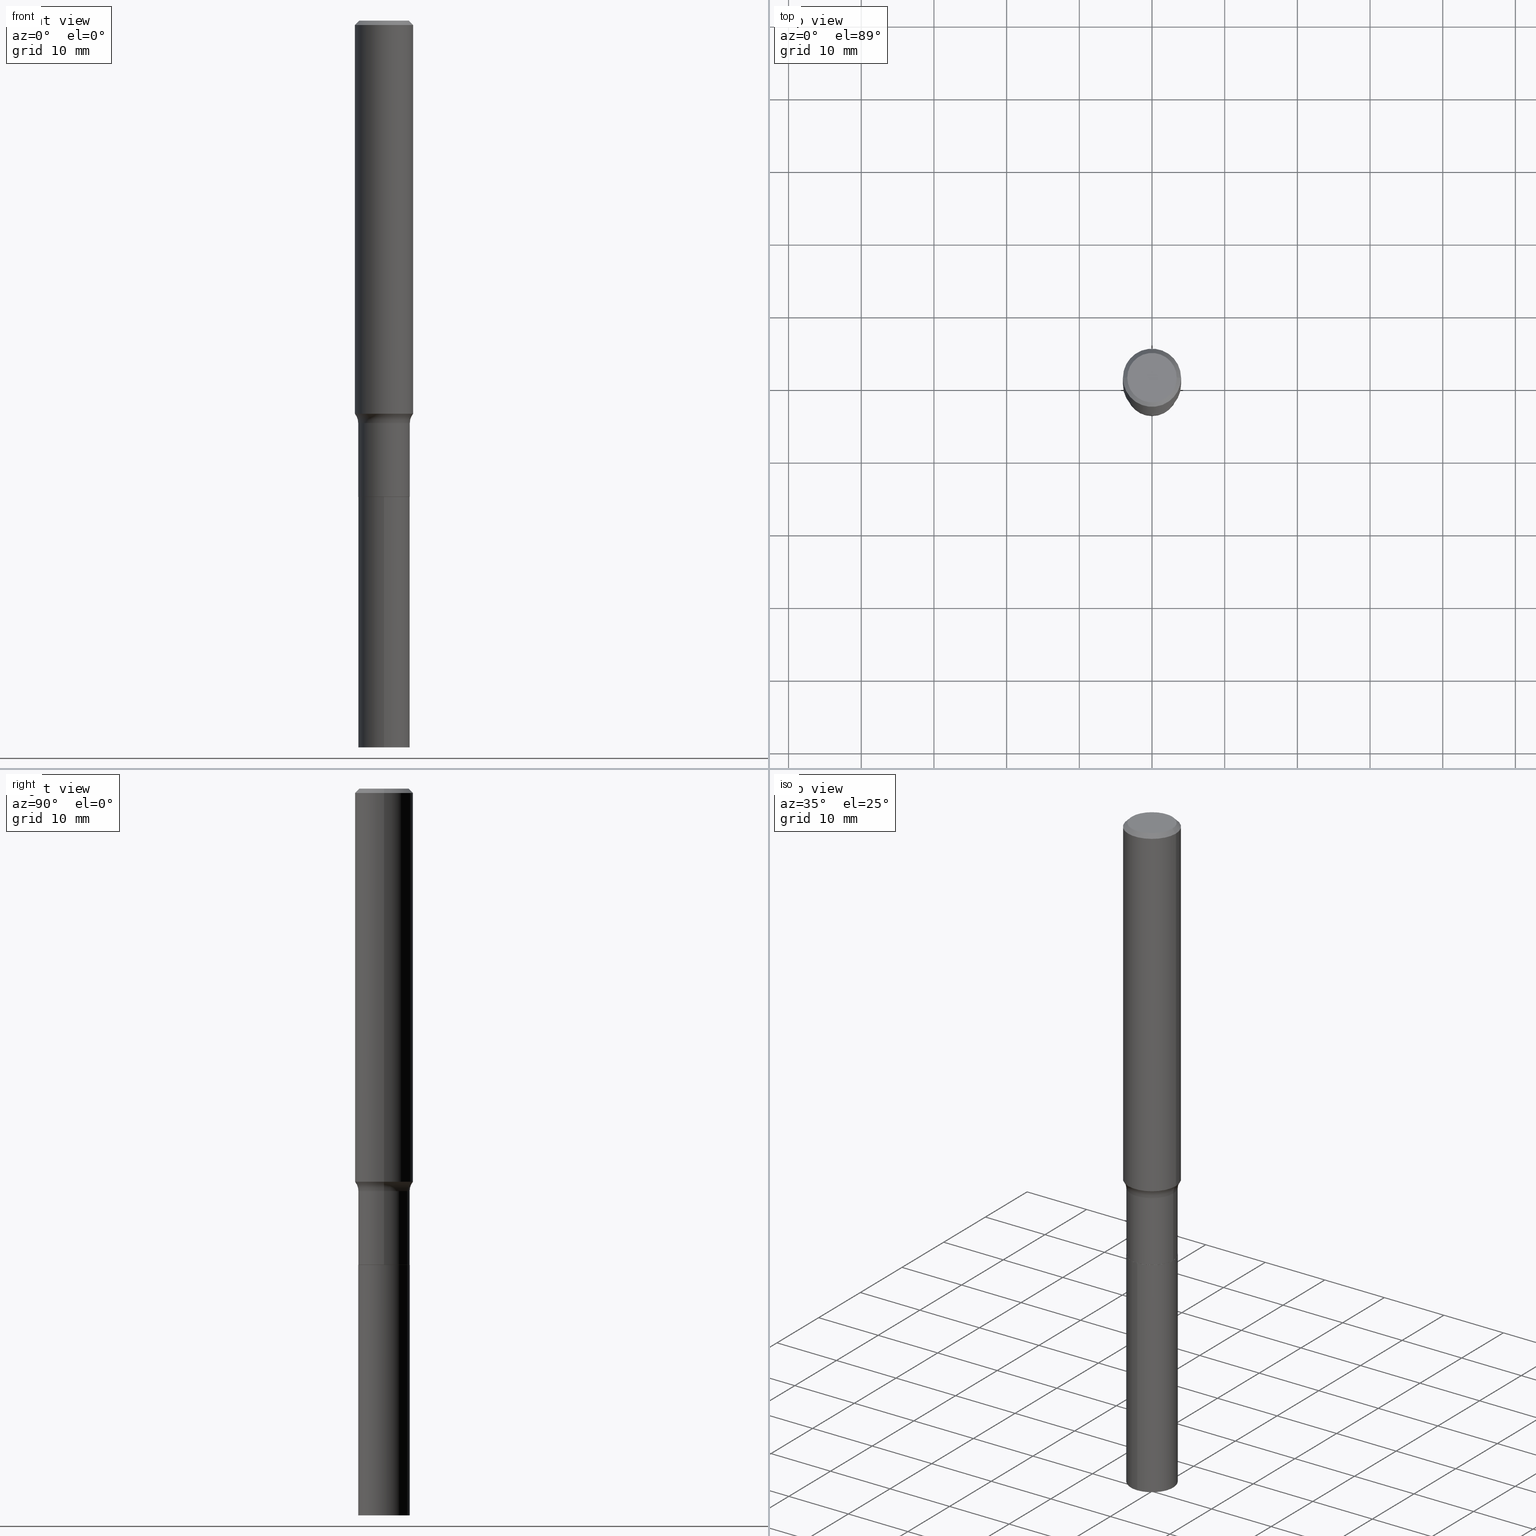
[diagram: canonical four-view strip — front | top / right | iso, engineering-drawing reading convention]
A machine part, canonical four-view strip (front | top / right | iso — engineering-drawing reading convention). The complete STEP part file that produces these views, byte-faithful:
ISO-10303-21;
HEADER;
FILE_DESCRIPTION (( 'STEP AP203' ),
    '1' );
FILE_NAME ('67858.STEP',
    '2024-04-19T16:44:17',
    ( '' ),
    ( '' ),
    'SwSTEP 2.0',
    'SolidWorks 2023',
    '' );
FILE_SCHEMA (( 'CONFIG_CONTROL_DESIGN' ));
ENDSEC;

DATA;
#1 = DIMENSIONAL_EXPONENTS ( 1.000000000000000000, 0.000000000000000000, 0.000000000000000000, 0.000000000000000000, 0.000000000000000000, 0.000000000000000000, 0.000000000000000000 ) ;
#2 = AXIS2_PLACEMENT_3D ( 'NONE', #123, #92, #244 ) ;
#3 = ORIENTED_EDGE ( 'NONE', *, *, #427, .T. ) ;
#4 = CC_DESIGN_PERSON_AND_ORGANIZATION_ASSIGNMENT ( #369, #463, ( #341 ) ) ;
#5 = EDGE_LOOP ( 'NONE', ( #435, #118 ) ) ;
#6 = CARTESIAN_POINT ( 'NONE',  ( 5.208484778518924874E-29, -7.436335872227299474E-15, -2.129851243796487825 ) ) ;
#7 = DIRECTION ( 'NONE',  ( -2.445468806185136597E-29, 3.491481338843145583E-15, 1.000000000000000000 ) ) ;
#8 = PERSON_AND_ORGANIZATION ( #26, #433 ) ;
#9 = DIRECTION ( 'NONE',  ( -6.982962677686265133E-15, -1.000000000000000000, 3.909621457837943227E-15 ) ) ;
#10 = EDGE_CURVE ( 'NONE', #197, #137, #383, .T. ) ;
#11 = DIRECTION ( 'NONE',  ( -0.7071067811865447972, 2.468850131082228267E-15, -0.7071067811865502373 ) ) ;
#12 = DIRECTION ( 'NONE',  ( 1.000000000000000000, -6.982962677686269077E-15, 4.883557194083113462E-29 ) ) ;
#13 = APPROVAL_DATE_TIME ( #57, #246 ) ;
#14 = DIRECTION ( 'NONE',  ( -2.445468806185136597E-29, 3.491481338843145583E-15, 1.000000000000000000 ) ) ;
#15 = CIRCLE ( 'NONE', #206, 0.1392500000000000127 ) ;
#16 = CC_DESIGN_SECURITY_CLASSIFICATION ( #37, ( #365 ) ) ;
#17 = ADVANCED_FACE ( 'NONE', ( #429 ), #366, .T. ) ;
#18 = CARTESIAN_POINT ( 'NONE',  ( 9.929834732248363439E-16, 0.1397499999999909925, -2.579000000000000625 ) ) ;
#19 = DIRECTION ( 'NONE',  ( -2.445468806185136597E-29, 3.491481338843145583E-15, 1.000000000000000000 ) ) ;
#20 = CARTESIAN_POINT ( 'NONE',  ( -0.1397499999999999576, -7.314298076284757115E-15, -2.180100000000000371 ) ) ;
#21 = DIRECTION ( 'NONE',  ( -2.445468806185136597E-29, 3.491481338843145583E-15, 1.000000000000000000 ) ) ;
#22 = VERTEX_POINT ( 'NONE', #277 ) ;
#23 = CARTESIAN_POINT ( 'NONE',  ( -0.1575000000000000844, 1.119104808822158392E-15, -7.747322767151481189E-30 ) ) ;
#24 = AXIS2_PLACEMENT_3D ( 'NONE', #380, #166, #388 ) ;
#25 = CIRCLE ( 'NONE', #94, 0.1397500000000000131 ) ;
#26 = PERSON ( 'UNSPECIFIED', 'UNSPECIFIED', 'UNSPECIFIED', ('UNSPECIFIED'), ('UNSPECIFIED'), ('UNSPECIFIED') ) ;
#27 = ORIENTED_EDGE ( 'NONE', *, *, #413, .T. ) ;
#28 = DIRECTION ( 'NONE',  ( -0.7071067811864026886, 7.493145998869830357E-15, 0.7071067811866923458 ) ) ;
#29 = EDGE_CURVE ( 'NONE', #428, #271, #325, .T. ) ;
#30 = CARTESIAN_POINT ( 'NONE',  ( 0.1575000000000000011, -1.163014681279186162E-15, -0.02362500000000017364 ) ) ;
#31 = ORIENTED_EDGE ( 'NONE', *, *, #420, .F. ) ;
#32 = FACE_OUTER_BOUND ( 'NONE', #124, .T. ) ;
#33 = CARTESIAN_POINT ( 'NONE',  ( -0.1575000000000000011, -2.640306250606575648E-15, -0.02362500000000017364 ) ) ;
#34 = VERTEX_POINT ( 'NONE', #96 ) ;
#35 =( NAMED_UNIT ( * ) PLANE_ANGLE_UNIT ( ) SI_UNIT ( $, .RADIAN. ) );
#36 = CIRCLE ( 'NONE', #212, 0.1575000000000002232 ) ;
#37 = SECURITY_CLASSIFICATION ( '', '', #442 ) ;
#38 = ORIENTED_EDGE ( 'NONE', *, *, #81, .F. ) ;
#39 = EDGE_LOOP ( 'NONE', ( #114, #148, #374, #293 ) ) ;
#40 = ORIENTED_EDGE ( 'NONE', *, *, #29, .T. ) ;
#41 = AXIS2_PLACEMENT_3D ( 'NONE', #112, #19, #426 ) ;
#42 = ORIENTED_EDGE ( 'NONE', *, *, #413, .F. ) ;
#43 = DIRECTION ( 'NONE',  ( 1.000000000000000000, -6.982962677686269077E-15, 4.883557194083113462E-29 ) ) ;
#44 = DIRECTION ( 'NONE',  ( -2.438088387897960049E-29, 3.491481338843145188E-15, 1.000000000000000000 ) ) ;
#45 = CALENDAR_DATE ( 2024, 19, 4 ) ;
#46 = CARTESIAN_POINT ( 'NONE',  ( 5.777420054612427235E-31, -8.248624663016991397E-17, -0.02362500000000017364 ) ) ;
#47 = DESIGN_CONTEXT ( 'detailed design', #213, 'design' ) ;
#48 = ADVANCED_FACE ( 'NONE', ( #49 ), #241, .F. ) ;
#49 = FACE_OUTER_BOUND ( 'NONE', #5, .T. ) ;
#50 = AXIS2_PLACEMENT_3D ( 'NONE', #407, #14, #414 ) ;
#51 = CONICAL_SURFACE ( 'NONE', #110, 0.1392500000000000127, 0.7853981633972434429 ) ;
#52 = EDGE_CURVE ( 'NONE', #344, #290, #116, .T. ) ;
#53 = PERSON_AND_ORGANIZATION_ROLE ( 'design_supplier' ) ;
#54 = DIRECTION ( 'NONE',  ( -1.000000000000000000, 7.105427357600995548E-15, 0.000000000000000000 ) ) ;
#55 = DIRECTION ( 'NONE',  ( 1.000000000000000000, -6.982962677686266711E-15, 4.876170806578254279E-29 ) ) ;
#56 = DIRECTION ( 'NONE',  ( -6.982962677686266711E-15, -1.000000000000000000, 3.491481338843145583E-15 ) ) ;
#57 = DATE_AND_TIME ( #45, #104 ) ;
#58 = DIRECTION ( 'NONE',  ( -2.445468806185136597E-29, 3.491481338843145583E-15, 1.000000000000000000 ) ) ;
#59 = DIRECTION ( 'NONE',  ( 0.000000000000000000, 0.000000000000000000, 1.000000000000000000 ) ) ;
#60 = DIRECTION ( 'NONE',  ( -2.445468806185136597E-29, 3.491481338843145583E-15, 1.000000000000000000 ) ) ;
#61 = APPROVAL_STATUS ( 'not_yet_approved' ) ;
#62 = ORIENTED_EDGE ( 'NONE', *, *, #349, .F. ) ;
#63 = CARTESIAN_POINT ( 'NONE',  ( 9.929834732248030145E-16, 0.1397499999999910203, -2.579000000000000625 ) ) ;
#64 = EDGE_CURVE ( 'NONE', #70, #336, #163, .T. ) ;
#65 = FACE_OUTER_BOUND ( 'NONE', #334, .T. ) ;
#66 = AXIS2_PLACEMENT_3D ( 'NONE', #91, #210, #93 ) ;
#67 = AXIS2_PLACEMENT_3D ( 'NONE', #177, #282, #248 ) ;
#68 = AXIS2_PLACEMENT_3D ( 'NONE', #235, #397, #345 ) ;
#69 = PERSON_AND_ORGANIZATION ( #26, #433 ) ;
#70 = VERTEX_POINT ( 'NONE', #375 ) ;
#71 = DIRECTION ( 'NONE',  ( 1.000000000000000000, -6.982962677686260400E-15, 0.000000000000000000 ) ) ;
#72 = CC_DESIGN_PERSON_AND_ORGANIZATION_ASSIGNMENT ( #8, #53, ( #365 ) ) ;
#73 = CARTESIAN_POINT ( 'NONE',  ( 0.1575000000000002787, -8.536152493962887743E-15, -2.129851243796487825 ) ) ;
#74 = CARTESIAN_POINT ( 'NONE',  ( 6.306864051151467131E-29, -9.004530372876471973E-15, -2.579000000000000181 ) ) ;
#75 = CIRCLE ( 'NONE', #286, 0.08000000000000002942 ) ;
#76 = ORIENTED_EDGE ( 'NONE', *, *, #300, .T. ) ;
#77 = EDGE_CURVE ( 'NONE', #451, #120, #204, .T. ) ;
#78 = ADVANCED_FACE ( 'NONE', ( #443 ), #416, .T. ) ;
#79 = VERTEX_POINT ( 'NONE', #158 ) ;
#80 = ORIENTED_EDGE ( 'NONE', *, *, #396, .T. ) ;
#81 = EDGE_CURVE ( 'NONE', #336, #458, #101, .T. ) ;
#82 = DIRECTION ( 'NONE',  ( 2.445656538134658550E-29, -3.491212496006390611E-15, -1.000000000000000000 ) ) ;
#83 = EDGE_CURVE ( 'NONE', #271, #428, #243, .T. ) ;
#84 = AXIS2_PLACEMENT_3D ( 'NONE', #6, #348, #274 ) ;
#85 = ORIENTED_EDGE ( 'NONE', *, *, #444, .F. ) ;
#86 = DIRECTION ( 'NONE',  ( -2.445656538134658831E-29, 3.491212496006390611E-15, 1.000000000000000000 ) ) ;
#87 = COORDINATED_UNIVERSAL_TIME_OFFSET ( 5, 0, .BEHIND. ) ;
#88 = DIRECTION ( 'NONE',  ( -2.445656538134658550E-29, 3.491212496006390611E-15, 1.000000000000000000 ) ) ;
#89 = CC_DESIGN_PERSON_AND_ORGANIZATION_ASSIGNMENT ( #225, #361, ( #438 ) ) ;
#90 = CARTESIAN_POINT ( 'NONE',  ( 6.306864051151467131E-29, -9.004530372876471973E-15, -2.579000000000000181 ) ) ;
#91 = CARTESIAN_POINT ( 'NONE',  ( 9.628065629938335282E-29, -1.374559694245315281E-14, -3.937000000000000721 ) ) ;
#92 = DIRECTION ( 'NONE',  ( -2.445656538134658831E-29, 3.491212496006390611E-15, 1.000000000000000000 ) ) ;
#93 = DIRECTION ( 'NONE',  ( -6.982962677686265133E-15, -1.000000000000000000, 3.909621457837943227E-15 ) ) ;
#94 = AXIS2_PLACEMENT_3D ( 'NONE', #258, #180, #459 ) ;
#95 = MANIFOLD_SOLID_BREP ( 'Body-Move/Copy2[2]', #205 ) ;
#96 = CARTESIAN_POINT ( 'NONE',  ( 0.1392500000000000127, -9.976907925744284959E-15, -2.579000000000000181 ) ) ;
#97 = ADVANCED_FACE ( 'NONE', ( #170 ), #247, .F. ) ;
#98 = DIRECTION ( 'NONE',  ( 1.000000000000000000, -6.982962677686273021E-15, 0.000000000000000000 ) ) ;
#99 = APPROVAL_STATUS ( 'not_yet_approved' ) ;
#100 = CARTESIAN_POINT ( 'NONE',  ( -0.2197499999999999454, -6.050360804979123407E-15, -2.180100000000000371 ) ) ;
#101 = CIRCLE ( 'NONE', #430, 0.1575000000000000011 ) ;
#102 = EDGE_LOOP ( 'NONE', ( #189, #3 ) ) ;
#103 = CIRCLE ( 'NONE', #146, 0.1397499999999999853 ) ;
#104 = LOCAL_TIME ( 12, 44, 17.00000000000000000, #87 ) ;
#105 = DIRECTION ( 'NONE',  ( -2.445468806185136877E-29, 3.491481338843145188E-15, 1.000000000000000000 ) ) ;
#106 = CARTESIAN_POINT ( 'NONE',  ( 0.1397499999999999576, -8.587647501018597988E-15, -2.180100000000000371 ) ) ;
#107 = ORIENTED_EDGE ( 'NONE', *, *, #460, .T. ) ;
#108 = ADVANCED_FACE ( 'NONE', ( #321 ), #339, .T. ) ;
#109 = APPLICATION_PROTOCOL_DEFINITION ( 'international standard', 'config_control_design', 1994, #160 ) ;
#110 = AXIS2_PLACEMENT_3D ( 'NONE', #90, #131, #174 ) ;
#111 = PERSON_AND_ORGANIZATION_ROLE ( 'classification_officer' ) ;
#112 = CARTESIAN_POINT ( 'NONE',  ( 5.331366544364216431E-29, -7.611778466811941994E-15, -2.180100000000000371 ) ) ;
#113 = DIRECTION ( 'NONE',  ( 1.000000000000000000, -6.982962677686267499E-15, 0.000000000000000000 ) ) ;
#114 = ORIENTED_EDGE ( 'NONE', *, *, #352, .F. ) ;
#115 = ORIENTED_EDGE ( 'NONE', *, *, #420, .T. ) ;
#116 = CIRCLE ( 'NONE', #377, 0.08000000000000002942 ) ;
#117 =( GEOMETRIC_REPRESENTATION_CONTEXT ( 3 ) GLOBAL_UNCERTAINTY_ASSIGNED_CONTEXT ( ( #200 ) ) GLOBAL_UNIT_ASSIGNED_CONTEXT ( ( #227, #35, #335 ) ) REPRESENTATION_CONTEXT ( 'NONE', 'WORKASPACE' ) );
#118 = ORIENTED_EDGE ( 'NONE', *, *, #83, .F. ) ;
#119 = APPROVAL ( #61, 'UNSPECIFIED' ) ;
#120 = VERTEX_POINT ( 'NONE', #106 ) ;
#121 = FACE_OUTER_BOUND ( 'NONE', #398, .T. ) ;
#122 = ADVANCED_FACE ( 'NONE', ( #218 ), #331, .T. ) ;
#123 = CARTESIAN_POINT ( 'NONE',  ( 6.306864051151467131E-29, -9.004530372876471973E-15, -2.579000000000000181 ) ) ;
#124 = EDGE_LOOP ( 'NONE', ( #436, #239, #367, #273 ) ) ;
#125 = CLOSED_SHELL ( 'NONE', ( #203, #48, #446, #214 ) ) ;
#126 = DIRECTION ( 'NONE',  ( 1.000000000000000000, -6.982962677686265922E-15, 4.876176775795935793E-29 ) ) ;
#127 = AXIS2_PLACEMENT_3D ( 'NONE', #437, #82, #351 ) ;
#128 = DIRECTION ( 'NONE',  ( 1.000000000000000000, -6.982962677686265922E-15, 0.000000000000000000 ) ) ;
#129 = DIRECTION ( 'NONE',  ( -2.445468806185136597E-29, 3.491481338843145583E-15, 1.000000000000000000 ) ) ;
#130 = FACE_OUTER_BOUND ( 'NONE', #404, .T. ) ;
#131 = DIRECTION ( 'NONE',  ( -2.445468806185136597E-29, 3.491481338843145583E-15, 1.000000000000000000 ) ) ;
#132 = DATE_TIME_ROLE ( 'creation_date' ) ;
#133 = DIRECTION ( 'NONE',  ( -1.000000000000000000, 6.982962677686265922E-15, 0.000000000000000000 ) ) ;
#134 = DIRECTION ( 'NONE',  ( -2.445468806185136597E-29, 3.491481338843145583E-15, 1.000000000000000000 ) ) ;
#135 = ADVANCED_FACE ( 'NONE', ( #454 ), #141, .T. ) ;
#136 = LINE ( 'NONE', #453, #192 ) ;
#137 = VERTEX_POINT ( 'NONE', #18 ) ;
#138 = LENGTH_MEASURE_WITH_UNIT ( LENGTH_MEASURE( 0.02539999999999999897 ), #216 );
#139 = CIRCLE ( 'NONE', #41, 0.1397499999999999576 ) ;
#140 = LOCAL_TIME ( 12, 44, 17.00000000000000000, #175 ) ;
#141 = CYLINDRICAL_SURFACE ( 'NONE', #447, 0.1575000000000000844 ) ;
#142 = CARTESIAN_POINT ( 'NONE',  ( 9.929834732248195806E-16, 0.1397499999999862741, -3.937000000000001165 ) ) ;
#143 = EDGE_CURVE ( 'NONE', #34, #451, #318, .T. ) ;
#144 = ORIENTED_EDGE ( 'NONE', *, *, #83, .T. ) ;
#145 = CYLINDRICAL_SURFACE ( 'NONE', #363, 0.1397500000000000131 ) ;
#146 = AXIS2_PLACEMENT_3D ( 'NONE', #386, #60, #98 ) ;
#147 = CALENDAR_DATE ( 2024, 19, 4 ) ;
#148 = ORIENTED_EDGE ( 'NONE', *, *, #52, .T. ) ;
#149 = DIRECTION ( 'NONE',  ( -2.445468806185136877E-29, 3.491481338843145188E-15, 1.000000000000000000 ) ) ;
#150 = VERTEX_POINT ( 'NONE', #260 ) ;
#151 = EDGE_LOOP ( 'NONE', ( #85, #268 ) ) ;
#152 = CC_DESIGN_PERSON_AND_ORGANIZATION_ASSIGNMENT ( #280, #111, ( #37 ) ) ;
#153 = CIRCLE ( 'NONE', #384, 0.1397499999999999576 ) ;
#154 = ORIENTED_EDGE ( 'NONE', *, *, #143, .F. ) ;
#155 = EDGE_CURVE ( 'NONE', #290, #120, #153, .T. ) ;
#156 = VERTEX_POINT ( 'NONE', #73 ) ;
#157 = APPROVAL_ROLE ( '' ) ;
#158 = CARTESIAN_POINT ( 'NONE',  ( 0.1338749999999999940, -1.040731925365424925E-15, 4.101342130351390035E-18 ) ) ;
#159 = PERSON_AND_ORGANIZATION ( #26, #433 ) ;
#160 = APPLICATION_CONTEXT ( 'configuration controlled 3d designs of mechanical parts and assemblies' ) ;
#161 = VECTOR ( 'NONE', #28, 39.37007874015748143 ) ;
#162 = APPROVAL_PERSON_ORGANIZATION ( #69, #119, #355 ) ;
#163 = LINE ( 'NONE', #208, #169 ) ;
#164 = DIRECTION ( 'NONE',  ( 1.000000000000000000, -6.982962677686265922E-15, 4.876176775795935793E-29 ) ) ;
#165 = DIRECTION ( 'NONE',  ( 1.000000000000000000, -6.982962677686266711E-15, 4.876170806578254279E-29 ) ) ;
#166 = DIRECTION ( 'NONE',  ( 2.438088387897960049E-29, -3.491481338843145188E-15, -1.000000000000000000 ) ) ;
#167 = CC_DESIGN_DATE_AND_TIME_ASSIGNMENT ( #298, #132, ( #341 ) ) ;
#168 = CARTESIAN_POINT ( 'NONE',  ( -9.758690342065924904E-16, -0.1397500000000090059, -2.578999999999999293 ) ) ;
#169 = VECTOR ( 'NONE', #11, 39.37007874015748143 ) ;
#170 = FACE_OUTER_BOUND ( 'NONE', #228, .T. ) ;
#171 = DATE_AND_TIME ( #357, #316 ) ;
#172 = AXIS2_PLACEMENT_3D ( 'NONE', #240, #134, #55 ) ;
#173 = LINE ( 'NONE', #392, #262 ) ;
#174 = DIRECTION ( 'NONE',  ( 1.000000000000000000, -6.982962677686260400E-15, 0.000000000000000000 ) ) ;
#175 = COORDINATED_UNIVERSAL_TIME_OFFSET ( 5, 0, .BEHIND. ) ;
#176 = CARTESIAN_POINT ( 'NONE',  ( -9.758690342065593582E-16, -0.1397500000000137521, -3.937000000000000277 ) ) ;
#177 = CARTESIAN_POINT ( 'NONE',  ( 6.305641316748374329E-29, -9.002784632207049680E-15, -2.578500000000000014 ) ) ;
#178 = DIRECTION ( 'NONE',  ( 1.000000000000000000, -6.982962677686267499E-15, 4.876176775795936353E-29 ) ) ;
#179 = ORIENTED_EDGE ( 'NONE', *, *, #349, .T. ) ;
#180 = DIRECTION ( 'NONE',  ( -2.445656538134658831E-29, 3.491212496006390611E-15, 1.000000000000000000 ) ) ;
#181 = AXIS2_PLACEMENT_3D ( 'NONE', #285, #7, #164 ) ;
#182 = CARTESIAN_POINT ( 'NONE',  ( 0.1392500000000000127, -9.976907925744284959E-15, -2.579000000000000181 ) ) ;
#183 = ORIENTED_EDGE ( 'NONE', *, *, #261, .F. ) ;
#184 = CARTESIAN_POINT ( 'NONE',  ( 6.306864051151467131E-29, -9.004530372876471973E-15, -2.579000000000000181 ) ) ;
#185 = ADVANCED_FACE ( 'NONE', ( #353 ), #230, .F. ) ;
#186 = DIRECTION ( 'NONE',  ( 0.7071067811865447972, -7.319954787623246579E-15, -0.7071067811865502373 ) ) ;
#187 = DIRECTION ( 'NONE',  ( -2.445468806185136597E-29, 3.491481338843145583E-15, 1.000000000000000000 ) ) ;
#188 = DIRECTION ( 'NONE',  ( 2.445468806185136597E-29, -3.491481338843145583E-15, -1.000000000000000000 ) ) ;
#189 = ORIENTED_EDGE ( 'NONE', *, *, #10, .T. ) ;
#190 = DIRECTION ( 'NONE',  ( -2.445468806185136597E-29, 3.491481338843145583E-15, 1.000000000000000000 ) ) ;
#191 = AXIS2_PLACEMENT_3D ( 'NONE', #314, #445, #9 ) ;
#192 = VECTOR ( 'NONE', #105, 39.37007874015748143 ) ;
#193 = LOCAL_TIME ( 12, 44, 17.00000000000000000, #423 ) ;
#194 = ORIENTED_EDGE ( 'NONE', *, *, #457, .T. ) ;
#195 = COORDINATED_UNIVERSAL_TIME_OFFSET ( 5, 0, .BEHIND. ) ;
#196 = ORIENTED_EDGE ( 'NONE', *, *, #444, .T. ) ;
#197 = VERTEX_POINT ( 'NONE', #168 ) ;
#198 = APPLICATION_PROTOCOL_DEFINITION ( 'international standard', 'config_control_design', 1994, #213 ) ;
#199 = AXIS2_PLACEMENT_3D ( 'NONE', #215, #251, #358 ) ;
#200 = UNCERTAINTY_MEASURE_WITH_UNIT (LENGTH_MEASURE( 1.000000000000000082E-05 ), #227, 'distance_accuracy_value', 'NONE');
#201 = CIRCLE ( 'NONE', #84, 0.1575000000000002232 ) ;
#202 = EDGE_LOOP ( 'NONE', ( #322, #107, #360, #385 ) ) ;
#203 = ADVANCED_FACE ( 'NONE', ( #130 ), #307, .T. ) ;
#204 = LINE ( 'NONE', #410, #309 ) ;
#205 = CLOSED_SHELL ( 'NONE', ( #253, #78, #135, #185, #381, #17, #328, #122, #419, #97, #249, #108 ) ) ;
#206 = AXIS2_PLACEMENT_3D ( 'NONE', #390, #220, #264 ) ;
#207 = DIRECTION ( 'NONE',  ( -2.445468806185136597E-29, 3.491481338843145583E-15, 1.000000000000000000 ) ) ;
#208 = CARTESIAN_POINT ( 'NONE',  ( -0.1575000000000000011, 1.017330375105417098E-15, -0.02362500000000017364 ) ) ;
#209 = CC_DESIGN_DATE_AND_TIME_ASSIGNMENT ( #292, #320, ( #37 ) ) ;
#210 = DIRECTION ( 'NONE',  ( -2.445656538134658831E-29, 3.491212496006390611E-15, 1.000000000000000000 ) ) ;
#211 = DIRECTION ( 'NONE',  ( 0.7071067811864026886, -2.468850131080739687E-15, 0.7071067811866923458 ) ) ;
#212 = AXIS2_PLACEMENT_3D ( 'NONE', #287, #329, #391 ) ;
#213 = APPLICATION_CONTEXT ( 'configuration controlled 3d designs of mechanical parts and assemblies' ) ;
#214 = ADVANCED_FACE ( 'NONE', ( #403 ), #276, .F. ) ;
#215 = CARTESIAN_POINT ( 'NONE',  ( 6.306864051151467131E-29, -9.004530372876471973E-15, -2.579000000000000181 ) ) ;
#216 =( LENGTH_UNIT ( ) NAMED_UNIT ( * ) SI_UNIT ( $, .METRE. ) );
#217 = DATE_AND_TIME ( #450, #193 ) ;
#218 = FACE_OUTER_BOUND ( 'NONE', #421, .T. ) ;
#219 = ORIENTED_EDGE ( 'NONE', *, *, #362, .F. ) ;
#220 = DIRECTION ( 'NONE',  ( -2.445468806185136597E-29, 3.491481338843145583E-15, 1.000000000000000000 ) ) ;
#221 = CARTESIAN_POINT ( 'NONE',  ( 0.000000000000000000, 0.000000000000000000, 0.000000000000000000 ) ) ;
#222 = EDGE_LOOP ( 'NONE', ( #257, #254, #179, #468 ) ) ;
#223 = AXIS2_PLACEMENT_3D ( 'NONE', #221, #21, #178 ) ;
#224 = LOCAL_TIME ( 12, 44, 17.00000000000000000, #343 ) ;
#225 = PERSON_AND_ORGANIZATION ( #26, #433 ) ;
#226 = ORIENTED_EDGE ( 'NONE', *, *, #52, .F. ) ;
#227 =( CONVERSION_BASED_UNIT ( 'INCH', #138 ) LENGTH_UNIT ( ) NAMED_UNIT ( #1 ) );
#228 = EDGE_LOOP ( 'NONE', ( #337, #295 ) ) ;
#229 = AXIS2_PLACEMENT_3D ( 'NONE', #46, #311, #133 ) ;
#230 = TOROIDAL_SURFACE ( 'NONE', #431, 0.2197499999999999454, 0.08000000000000002942 ) ;
#231 = APPROVAL ( #371, 'UNSPECIFIED' ) ;
#232 = ORIENTED_EDGE ( 'NONE', *, *, #352, .T. ) ;
#233 = ORIENTED_EDGE ( 'NONE', *, *, #400, .T. ) ;
#234 = EDGE_LOOP ( 'NONE', ( #183, #301, #399, #401 ) ) ;
#235 = CARTESIAN_POINT ( 'NONE',  ( 5.777420054612427235E-31, -8.248624663016991397E-17, -0.02362500000000017364 ) ) ;
#236 = EDGE_CURVE ( 'NONE', #70, #79, #412, .T. ) ;
#237 = AXIS2_PLACEMENT_3D ( 'NONE', #184, #190, #71 ) ;
#238 = FACE_OUTER_BOUND ( 'NONE', #151, .T. ) ;
#239 = ORIENTED_EDGE ( 'NONE', *, *, #236, .F. ) ;
#240 = CARTESIAN_POINT ( 'NONE',  ( -1.002970424325032604E-46, 1.431975951230895391E-32, 4.101342130344482109E-18 ) ) ;
#241 = PLANE ( 'NONE',  #372 ) ;
#242 = PERSON_AND_ORGANIZATION ( #26, #433 ) ;
#243 = CIRCLE ( 'NONE', #66, 0.1397500000000000131 ) ;
#244 = DIRECTION ( 'NONE',  ( -6.982962677686265133E-15, -1.000000000000000000, 3.909621457837943227E-15 ) ) ;
#245 = AXIS2_PLACEMENT_3D ( 'NONE', #291, #188, #462 ) ;
#246 = APPROVAL ( #99, 'UNSPECIFIED' ) ;
#247 = PLANE ( 'NONE',  #24 ) ;
#248 = DIRECTION ( 'NONE',  ( 1.000000000000000000, -6.982962677686273021E-15, 0.000000000000000000 ) ) ;
#249 = ADVANCED_FACE ( 'NONE', ( #238 ), #408, .F. ) ;
#250 = APPROVAL_DATE_TIME ( #217, #119 ) ;
#251 = DIRECTION ( 'NONE',  ( -2.445468806185136597E-29, 3.491481338843145583E-15, 1.000000000000000000 ) ) ;
#252 = VECTOR ( 'NONE', #86, 39.37007874015748143 ) ;
#253 = ADVANCED_FACE ( 'NONE', ( #275 ), #51, .T. ) ;
#254 = ORIENTED_EDGE ( 'NONE', *, *, #279, .T. ) ;
#255 = LINE ( 'NONE', #30, #310 ) ;
#256 = MANIFOLD_SOLID_BREP ( 'Body-Move/Copy2[1]', #125 ) ;
#257 = ORIENTED_EDGE ( 'NONE', *, *, #368, .F. ) ;
#258 = CARTESIAN_POINT ( 'NONE',  ( 6.306864051151467131E-29, -9.004530372876471973E-15, -2.579000000000000181 ) ) ;
#259 = CARTESIAN_POINT ( 'NONE',  ( 0.000000000000000000, 0.000000000000000000, 0.000000000000000000 ) ) ;
#260 = CARTESIAN_POINT ( 'NONE',  ( -0.1392500000000000127, -8.012450386156421370E-15, -2.579000000000000181 ) ) ;
#261 = EDGE_CURVE ( 'NONE', #22, #290, #173, .T. ) ;
#262 = VECTOR ( 'NONE', #317, 39.37007874015748143 ) ;
#263 = MECHANICAL_CONTEXT ( 'NONE', #160, 'mechanical' ) ;
#264 = DIRECTION ( 'NONE',  ( 1.000000000000000000, -6.982962677686260400E-15, 0.000000000000000000 ) ) ;
#265 = ORIENTED_EDGE ( 'NONE', *, *, #396, .F. ) ;
#266 = CARTESIAN_POINT ( 'NONE',  ( 0.000000000000000000, 0.000000000000000000, 0.000000000000000000 ) ) ;
#267 = EDGE_CURVE ( 'NONE', #156, #458, #136, .T. ) ;
#268 = ORIENTED_EDGE ( 'NONE', *, *, #460, .F. ) ;
#269 = AXIS2_PLACEMENT_3D ( 'NONE', #74, #299, #370 ) ;
#270 = ORIENTED_EDGE ( 'NONE', *, *, #267, .F. ) ;
#271 = VERTEX_POINT ( 'NONE', #142 ) ;
#272 = DIRECTION ( 'NONE',  ( -2.445468806185136597E-29, 3.491481338843145583E-15, 1.000000000000000000 ) ) ;
#273 = ORIENTED_EDGE ( 'NONE', *, *, #81, .T. ) ;
#274 = DIRECTION ( 'NONE',  ( 1.000000000000000000, -6.982962677686265133E-15, 0.000000000000000000 ) ) ;
#275 = FACE_OUTER_BOUND ( 'NONE', #425, .T. ) ;
#276 = PLANE ( 'NONE',  #127 ) ;
#277 = CARTESIAN_POINT ( 'NONE',  ( -0.1397500000000000131, -7.314298076284757115E-15, -2.578500000000000014 ) ) ;
#278 = ADVANCED_BREP_SHAPE_REPRESENTATION ( '67858', ( #256, #95, #378 ), #117 ) ;
#279 = EDGE_CURVE ( 'NONE', #79, #458, #255, .T. ) ;
#280 = PERSON_AND_ORGANIZATION ( #26, #433 ) ;
#281 = CIRCLE ( 'NONE', #67, 0.1397499999999999853 ) ;
#282 = DIRECTION ( 'NONE',  ( -2.445468806185136597E-29, 3.491481338843145583E-15, 1.000000000000000000 ) ) ;
#283 = APPROVAL_ROLE ( '' ) ;
#284 = CC_DESIGN_PERSON_AND_ORGANIZATION_ASSIGNMENT ( #242, #346, ( #365 ) ) ;
#285 = CARTESIAN_POINT ( 'NONE',  ( 0.000000000000000000, 0.000000000000000000, 0.000000000000000000 ) ) ;
#286 = AXIS2_PLACEMENT_3D ( 'NONE', #382, #56, #324 ) ;
#287 = CARTESIAN_POINT ( 'NONE',  ( 5.208484778518924874E-29, -7.436335872227299474E-15, -2.129851243796487825 ) ) ;
#288 = SHAPE_DEFINITION_REPRESENTATION ( #376, #278 ) ;
#289 = EDGE_CURVE ( 'NONE', #22, #451, #103, .T. ) ;
#290 = VERTEX_POINT ( 'NONE', #20 ) ;
#291 = CARTESIAN_POINT ( 'NONE',  ( 5.777420054612427235E-31, -8.248624663016991397E-17, -0.02362500000000017364 ) ) ;
#292 = DATE_AND_TIME ( #387, #140 ) ;
#293 = ORIENTED_EDGE ( 'NONE', *, *, #300, .F. ) ;
#294 = DIRECTION ( 'NONE',  ( -6.982962677686265133E-15, -1.000000000000000000, 3.909621457837943227E-15 ) ) ;
#295 = ORIENTED_EDGE ( 'NONE', *, *, #368, .T. ) ;
#296 = CARTESIAN_POINT ( 'NONE',  ( 0.1575000000000000011, -1.182302868365756877E-15, -0.02362500000000017364 ) ) ;
#297 = EDGE_CURVE ( 'NONE', #451, #22, #281, .T. ) ;
#298 = DATE_AND_TIME ( #147, #224 ) ;
#299 = DIRECTION ( 'NONE',  ( -2.445656538134658831E-29, 3.491212496006390611E-15, 1.000000000000000000 ) ) ;
#300 = EDGE_CURVE ( 'NONE', #156, #120, #75, .T. ) ;
#301 = ORIENTED_EDGE ( 'NONE', *, *, #289, .T. ) ;
#302 = AXIS2_PLACEMENT_3D ( 'NONE', #379, #207, #165 ) ;
#303 = CC_DESIGN_APPROVAL ( #246, ( #365 ) ) ;
#304 = ORIENTED_EDGE ( 'NONE', *, *, #427, .F. ) ;
#305 = ORIENTED_EDGE ( 'NONE', *, *, #362, .T. ) ;
#306 = LINE ( 'NONE', #406, #252 ) ;
#307 = CYLINDRICAL_SURFACE ( 'NONE', #2, 0.1397500000000000131 ) ;
#308 = CARTESIAN_POINT ( 'NONE',  ( 5.331366544364216431E-29, -7.611778466811941994E-15, -2.180100000000000371 ) ) ;
#309 = VECTOR ( 'NONE', #347, 39.37007874015748143 ) ;
#310 = VECTOR ( 'NONE', #186, 39.37007874015748143 ) ;
#311 = DIRECTION ( 'NONE',  ( 2.445468806185136597E-29, -3.491481338843145583E-15, -1.000000000000000000 ) ) ;
#312 = LINE ( 'NONE', #63, #350 ) ;
#313 = CARTESIAN_POINT ( 'NONE',  ( 6.306864051151467131E-29, -9.004530372876471973E-15, -2.579000000000000181 ) ) ;
#314 = CARTESIAN_POINT ( 'NONE',  ( 9.628065629938335282E-29, -1.374559694245315281E-14, -3.937000000000000721 ) ) ;
#315 = AXIS2_PLACEMENT_3D ( 'NONE', #313, #44, #126 ) ;
#316 = LOCAL_TIME ( 12, 44, 17.00000000000000000, #195 ) ;
#317 = DIRECTION ( 'NONE',  ( -2.445468806185136877E-29, 3.491481338843145188E-15, 1.000000000000000000 ) ) ;
#318 = LINE ( 'NONE', #182, #440 ) ;
#319 = FACE_OUTER_BOUND ( 'NONE', #364, .T. ) ;
#320 = DATE_TIME_ROLE ( 'classification_date' ) ;
#321 = FACE_OUTER_BOUND ( 'NONE', #202, .T. ) ;
#322 = ORIENTED_EDGE ( 'NONE', *, *, #457, .F. ) ;
#323 = LINE ( 'NONE', #456, #161 ) ;
#324 = DIRECTION ( 'NONE',  ( 1.000000000000000000, -6.982962677686257244E-15, 0.000000000000000000 ) ) ;
#325 = CIRCLE ( 'NONE', #191, 0.1397500000000000131 ) ;
#326 = CIRCLE ( 'NONE', #172, 0.1338749999999999940 ) ;
#327 = DIRECTION ( 'NONE',  ( -2.445656538134658831E-29, 3.491212496006390611E-15, 1.000000000000000000 ) ) ;
#328 = ADVANCED_FACE ( 'NONE', ( #121 ), #405, .F. ) ;
#329 = DIRECTION ( 'NONE',  ( -2.445468806185136597E-29, 3.491481338843145583E-15, 1.000000000000000000 ) ) ;
#330 = CARTESIAN_POINT ( 'NONE',  ( -0.1575000000000002787, -6.317231063405141082E-15, -2.129851243796487825 ) ) ;
#331 = CYLINDRICAL_SURFACE ( 'NONE', #223, 0.1575000000000000844 ) ;
#332 = CARTESIAN_POINT ( 'NONE',  ( 0.1397499999999999853, -9.978653666413707252E-15, -2.578500000000000014 ) ) ;
#333 = VECTOR ( 'NONE', #149, 39.37007874015748143 ) ;
#334 = EDGE_LOOP ( 'NONE', ( #265, #144, #305, #304 ) ) ;
#335 =( NAMED_UNIT ( * ) SI_UNIT ( $, .STERADIAN. ) SOLID_ANGLE_UNIT ( ) );
#336 = VERTEX_POINT ( 'NONE', #33 ) ;
#337 = ORIENTED_EDGE ( 'NONE', *, *, #236, .T. ) ;
#338 = ORIENTED_EDGE ( 'NONE', *, *, #267, .T. ) ;
#339 = CONICAL_SURFACE ( 'NONE', #199, 0.1392500000000000127, 0.7853981633972434429 ) ;
#340 = CIRCLE ( 'NONE', #68, 0.1575000000000000011 ) ;
#341 = PRODUCT_DEFINITION ( 'UNKNOWN', '', #365, #47 ) ;
#342 = CC_DESIGN_APPROVAL ( #119, ( #37 ) ) ;
#343 = COORDINATED_UNIVERSAL_TIME_OFFSET ( 5, 0, .BEHIND. ) ;
#344 = VERTEX_POINT ( 'NONE', #330 ) ;
#345 = DIRECTION ( 'NONE',  ( 1.000000000000000000, -6.982962677686265922E-15, 0.000000000000000000 ) ) ;
#346 = PERSON_AND_ORGANIZATION_ROLE ( 'creator' ) ;
#347 = DIRECTION ( 'NONE',  ( -2.445468806185136877E-29, 3.491481338843145188E-15, 1.000000000000000000 ) ) ;
#348 = DIRECTION ( 'NONE',  ( -2.445468806185136597E-29, 3.491481338843145583E-15, 1.000000000000000000 ) ) ;
#349 = EDGE_CURVE ( 'NONE', #458, #336, #340, .T. ) ;
#350 = VECTOR ( 'NONE', #395, 39.37007874015748143 ) ;
#351 = DIRECTION ( 'NONE',  ( 6.982962677686265922E-15, 1.000000000000000000, -3.491212496006390611E-15 ) ) ;
#352 = EDGE_CURVE ( 'NONE', #344, #156, #201, .T. ) ;
#353 = FACE_OUTER_BOUND ( 'NONE', #39, .T. ) ;
#354 = DIRECTION ( 'NONE',  ( 7.105427357601001859E-15, 1.000000000000000000, -3.491481338843145583E-15 ) ) ;
#355 = APPROVAL_ROLE ( '' ) ;
#356 = CC_DESIGN_APPROVAL ( #231, ( #341 ) ) ;
#357 = CALENDAR_DATE ( 2024, 19, 4 ) ;
#358 = DIRECTION ( 'NONE',  ( 1.000000000000000000, -6.982962677686260400E-15, 0.000000000000000000 ) ) ;
#359 = DIRECTION ( 'NONE',  ( 1.000000000000000000, -6.982962677686267499E-15, 4.876176775795936353E-29 ) ) ;
#360 = ORIENTED_EDGE ( 'NONE', *, *, #143, .T. ) ;
#361 = PERSON_AND_ORGANIZATION_ROLE ( 'design_owner' ) ;
#362 = EDGE_CURVE ( 'NONE', #428, #197, #306, .T. ) ;
#363 = AXIS2_PLACEMENT_3D ( 'NONE', #417, #327, #294 ) ;
#364 = EDGE_LOOP ( 'NONE', ( #461, #432, #31, #465 ) ) ;
#365 = PRODUCT_DEFINITION_FORMATION_WITH_SPECIFIED_SOURCE ( 'ANY', '', #438, .NOT_KNOWN. ) ;
#366 = CYLINDRICAL_SURFACE ( 'NONE', #50, 0.1397499999999999853 ) ;
#367 = ORIENTED_EDGE ( 'NONE', *, *, #64, .T. ) ;
#368 = EDGE_CURVE ( 'NONE', #79, #70, #326, .T. ) ;
#369 = PERSON_AND_ORGANIZATION ( #26, #433 ) ;
#370 = DIRECTION ( 'NONE',  ( -6.982962677686265133E-15, -1.000000000000000000, 3.909621457837943227E-15 ) ) ;
#371 = APPROVAL_STATUS ( 'not_yet_approved' ) ;
#372 = AXIS2_PLACEMENT_3D ( 'NONE', #415, #88, #449 ) ;
#373 = AXIS2_PLACEMENT_3D ( 'NONE', #308, #129, #43 ) ;
#374 = ORIENTED_EDGE ( 'NONE', *, *, #155, .T. ) ;
#375 = CARTESIAN_POINT ( 'NONE',  ( -0.1338749999999999940, 9.760872517903331886E-16, 4.101342130337800673E-18 ) ) ;
#376 = PRODUCT_DEFINITION_SHAPE ( 'NONE', 'NONE',  #341 ) ;
#377 = AXIS2_PLACEMENT_3D ( 'NONE', #100, #354, #54 ) ;
#378 = AXIS2_PLACEMENT_3D ( 'NONE', #266, #59, #422 ) ;
#379 = CARTESIAN_POINT ( 'NONE',  ( -1.002970424325032604E-46, 1.431975951230895391E-32, 4.101342130344482109E-18 ) ) ;
#380 = CARTESIAN_POINT ( 'NONE',  ( -5.014852121625163022E-47, 7.159879756154476955E-33, 2.050671065172241055E-18 ) ) ;
#381 = ADVANCED_FACE ( 'NONE', ( #319 ), #452, .T. ) ;
#382 = CARTESIAN_POINT ( 'NONE',  ( 0.2197499999999999454, -9.146284515233499640E-15, -2.180100000000000371 ) ) ;
#383 = CIRCLE ( 'NONE', #269, 0.1397500000000000131 ) ;
#384 = AXIS2_PLACEMENT_3D ( 'NONE', #394, #187, #113 ) ;
#385 = ORIENTED_EDGE ( 'NONE', *, *, #289, .F. ) ;
#386 = CARTESIAN_POINT ( 'NONE',  ( 6.305641316748374329E-29, -9.002784632207049680E-15, -2.578500000000000014 ) ) ;
#387 = CALENDAR_DATE ( 2024, 19, 4 ) ;
#388 = DIRECTION ( 'NONE',  ( -1.000000000000000000, 6.982962677686265922E-15, -4.876176775795935793E-29 ) ) ;
#389 = ORIENTED_EDGE ( 'NONE', *, *, #10, .F. ) ;
#390 = CARTESIAN_POINT ( 'NONE',  ( 6.306864051151467131E-29, -9.004530372876471973E-15, -2.579000000000000181 ) ) ;
#391 = DIRECTION ( 'NONE',  ( 1.000000000000000000, -6.982962677686265133E-15, 0.000000000000000000 ) ) ;
#392 = CARTESIAN_POINT ( 'NONE',  ( -0.1397499999999999853, 9.929834732247399056E-16, -6.874211788631229584E-30 ) ) ;
#393 = CONICAL_SURFACE ( 'NONE', #245, 0.1575000000000000011, 0.7853981633974445042 ) ;
#394 = CARTESIAN_POINT ( 'NONE',  ( 5.331366544364216431E-29, -7.611778466811941994E-15, -2.180100000000000371 ) ) ;
#395 = DIRECTION ( 'NONE',  ( -2.445656538134658831E-29, 3.491212496006390611E-15, 1.000000000000000000 ) ) ;
#396 = EDGE_CURVE ( 'NONE', #271, #137, #312, .T. ) ;
#397 = DIRECTION ( 'NONE',  ( -2.445468806185136597E-29, 3.491481338843145583E-15, 1.000000000000000000 ) ) ;
#398 = EDGE_LOOP ( 'NONE', ( #226, #455, #76, #115 ) ) ;
#399 = ORIENTED_EDGE ( 'NONE', *, *, #77, .T. ) ;
#400 = EDGE_CURVE ( 'NONE', #156, #344, #36, .T. ) ;
#401 = ORIENTED_EDGE ( 'NONE', *, *, #155, .F. ) ;
#402 = ORIENTED_EDGE ( 'NONE', *, *, #297, .F. ) ;
#403 = FACE_OUTER_BOUND ( 'NONE', #102, .T. ) ;
#404 = EDGE_LOOP ( 'NONE', ( #40, #80, #389, #219 ) ) ;
#405 = TOROIDAL_SURFACE ( 'NONE', #373, 0.2197499999999999454, 0.08000000000000002942 ) ;
#406 = CARTESIAN_POINT ( 'NONE',  ( -9.758690342065924904E-16, -0.1397500000000090059, -2.578999999999999293 ) ) ;
#407 = CARTESIAN_POINT ( 'NONE',  ( 0.000000000000000000, 0.000000000000000000, 0.000000000000000000 ) ) ;
#408 = PLANE ( 'NONE',  #315 ) ;
#409 = PERSON_AND_ORGANIZATION ( #26, #433 ) ;
#410 = CARTESIAN_POINT ( 'NONE',  ( 0.1397499999999999853, -9.758690342066555993E-16, 6.814457044174819178E-30 ) ) ;
#411 = DIRECTION ( 'NONE',  ( -2.445468806185136597E-29, 3.491481338843145583E-15, 1.000000000000000000 ) ) ;
#412 = CIRCLE ( 'NONE', #302, 0.1338749999999999940 ) ;
#413 = EDGE_CURVE ( 'NONE', #344, #336, #418, .T. ) ;
#414 = DIRECTION ( 'NONE',  ( 1.000000000000000000, -6.982962677686265922E-15, 4.876176775795935793E-29 ) ) ;
#415 = CARTESIAN_POINT ( 'NONE',  ( -1.120490933073637476E-29, -2.913814171053345090E-14, -3.937000000000000277 ) ) ;
#416 = CONICAL_SURFACE ( 'NONE', #229, 0.1575000000000000011, 0.7853981633974445042 ) ;
#417 = CARTESIAN_POINT ( 'NONE',  ( 6.306864051151467131E-29, -9.004530372876471973E-15, -2.579000000000000181 ) ) ;
#418 = LINE ( 'NONE', #23, #333 ) ;
#419 = ADVANCED_FACE ( 'NONE', ( #32 ), #393, .T. ) ;
#420 = EDGE_CURVE ( 'NONE', #120, #290, #139, .T. ) ;
#421 = EDGE_LOOP ( 'NONE', ( #42, #232, #338, #38 ) ) ;
#422 = DIRECTION ( 'NONE',  ( 1.000000000000000000, 0.000000000000000000, 0.000000000000000000 ) ) ;
#423 = COORDINATED_UNIVERSAL_TIME_OFFSET ( 5, 0, .BEHIND. ) ;
#424 = CIRCLE ( 'NONE', #237, 0.1392500000000000127 ) ;
#425 = EDGE_LOOP ( 'NONE', ( #196, #194, #402, #154 ) ) ;
#426 = DIRECTION ( 'NONE',  ( 1.000000000000000000, -6.982962677686267499E-15, 0.000000000000000000 ) ) ;
#427 = EDGE_CURVE ( 'NONE', #137, #197, #25, .T. ) ;
#428 = VERTEX_POINT ( 'NONE', #176 ) ;
#429 = FACE_OUTER_BOUND ( 'NONE', #234, .T. ) ;
#430 = AXIS2_PLACEMENT_3D ( 'NONE', #439, #411, #128 ) ;
#431 = AXIS2_PLACEMENT_3D ( 'NONE', #441, #272, #12 ) ;
#432 = ORIENTED_EDGE ( 'NONE', *, *, #261, .T. ) ;
#433 = ORGANIZATION ( 'UNSPECIFIED', 'UNSPECIFIED', '' ) ;
#434 = APPROVAL_DATE_TIME ( #171, #231 ) ;
#435 = ORIENTED_EDGE ( 'NONE', *, *, #29, .F. ) ;
#436 = ORIENTED_EDGE ( 'NONE', *, *, #279, .F. ) ;
#437 = CARTESIAN_POINT ( 'NONE',  ( 6.306864051151467131E-29, -9.004530372876471973E-15, -2.579000000000000181 ) ) ;
#438 = PRODUCT ( '67858', '67858', '', ( #263 ) ) ;
#439 = CARTESIAN_POINT ( 'NONE',  ( 5.777420054612427235E-31, -8.248624663016991397E-17, -0.02362500000000017364 ) ) ;
#440 = VECTOR ( 'NONE', #211, 39.37007874015748143 ) ;
#441 = CARTESIAN_POINT ( 'NONE',  ( 5.331366544364216431E-29, -7.611778466811941994E-15, -2.180100000000000371 ) ) ;
#442 = SECURITY_CLASSIFICATION_LEVEL ( 'unclassified' ) ;
#443 = FACE_OUTER_BOUND ( 'NONE', #222, .T. ) ;
#444 = EDGE_CURVE ( 'NONE', #34, #150, #424, .T. ) ;
#445 = DIRECTION ( 'NONE',  ( -2.445656538134658831E-29, 3.491212496006390611E-15, 1.000000000000000000 ) ) ;
#446 = ADVANCED_FACE ( 'NONE', ( #65 ), #145, .T. ) ;
#447 = AXIS2_PLACEMENT_3D ( 'NONE', #259, #58, #359 ) ;
#448 = APPROVAL_PERSON_ORGANIZATION ( #409, #246, #283 ) ;
#449 = DIRECTION ( 'NONE',  ( -6.982962677686265922E-15, -1.000000000000000000, 3.491212496006390611E-15 ) ) ;
#450 = CALENDAR_DATE ( 2024, 19, 4 ) ;
#451 = VERTEX_POINT ( 'NONE', #332 ) ;
#452 = CYLINDRICAL_SURFACE ( 'NONE', #181, 0.1397499999999999853 ) ;
#453 = CARTESIAN_POINT ( 'NONE',  ( 0.1575000000000000844, -1.099816621735587677E-15, 7.679978421878603638E-30 ) ) ;
#454 = FACE_OUTER_BOUND ( 'NONE', #466, .T. ) ;
#455 = ORIENTED_EDGE ( 'NONE', *, *, #400, .F. ) ;
#456 = CARTESIAN_POINT ( 'NONE',  ( -0.1392500000000000127, -8.015099613330533360E-15, -2.579000000000000181 ) ) ;
#457 = EDGE_CURVE ( 'NONE', #150, #22, #323, .T. ) ;
#458 = VERTEX_POINT ( 'NONE', #296 ) ;
#459 = DIRECTION ( 'NONE',  ( -6.982962677686265133E-15, -1.000000000000000000, 3.909621457837943227E-15 ) ) ;
#460 = EDGE_CURVE ( 'NONE', #150, #34, #15, .T. ) ;
#461 = ORIENTED_EDGE ( 'NONE', *, *, #297, .T. ) ;
#462 = DIRECTION ( 'NONE',  ( -1.000000000000000000, 6.982962677686265922E-15, 0.000000000000000000 ) ) ;
#463 = PERSON_AND_ORGANIZATION_ROLE ( 'creator' ) ;
#464 = APPROVAL_PERSON_ORGANIZATION ( #159, #231, #157 ) ;
#465 = ORIENTED_EDGE ( 'NONE', *, *, #77, .F. ) ;
#466 = EDGE_LOOP ( 'NONE', ( #233, #27, #62, #270 ) ) ;
#467 = PRODUCT_RELATED_PRODUCT_CATEGORY ( 'detail', '', ( #438 ) ) ;
#468 = ORIENTED_EDGE ( 'NONE', *, *, #64, .F. ) ;
ENDSEC;
END-ISO-10303-21;
